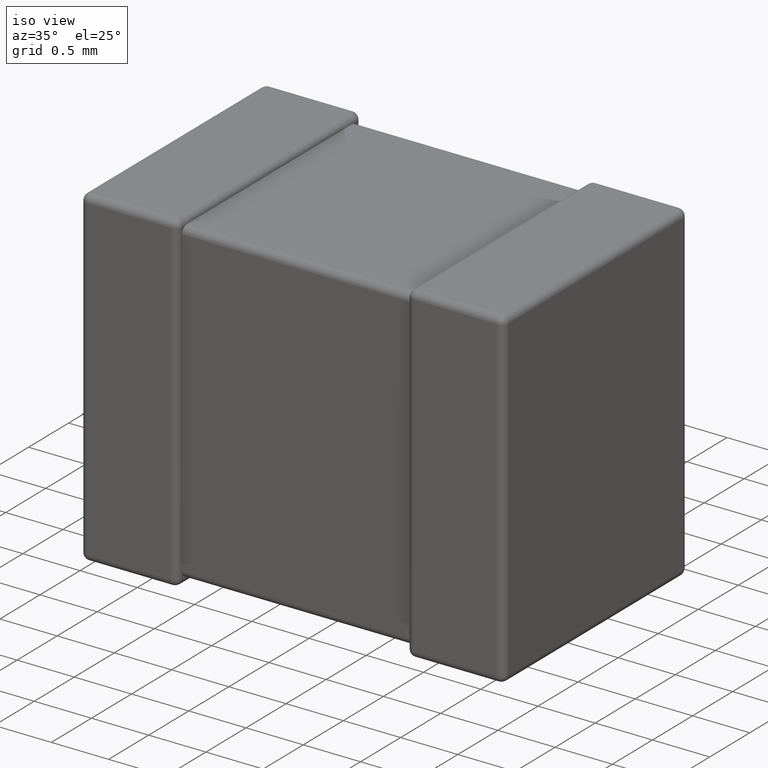
[diagram: clean part render]
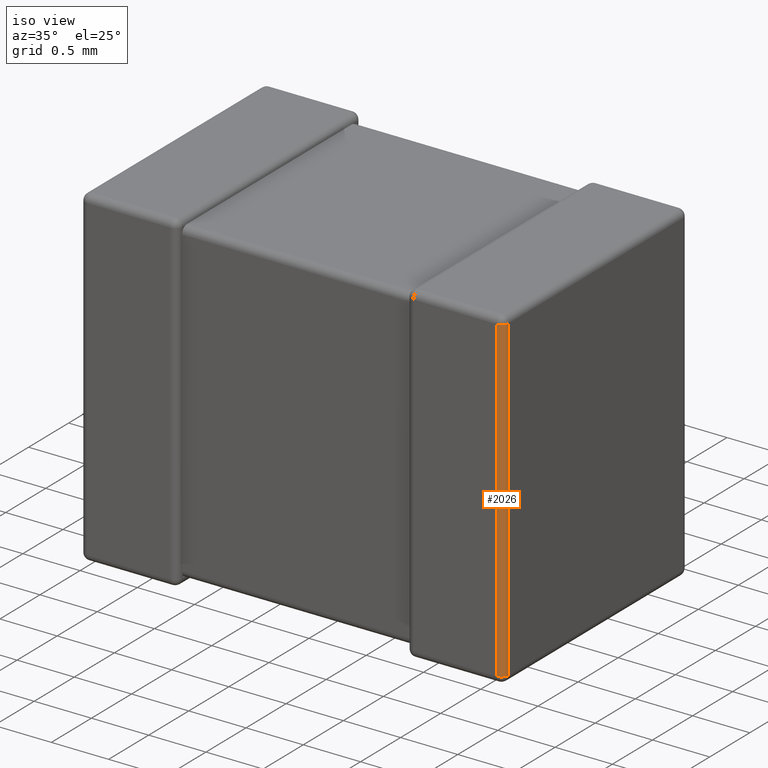
[diagram: same view with one face highlighted and labeled with its STEP entity id]
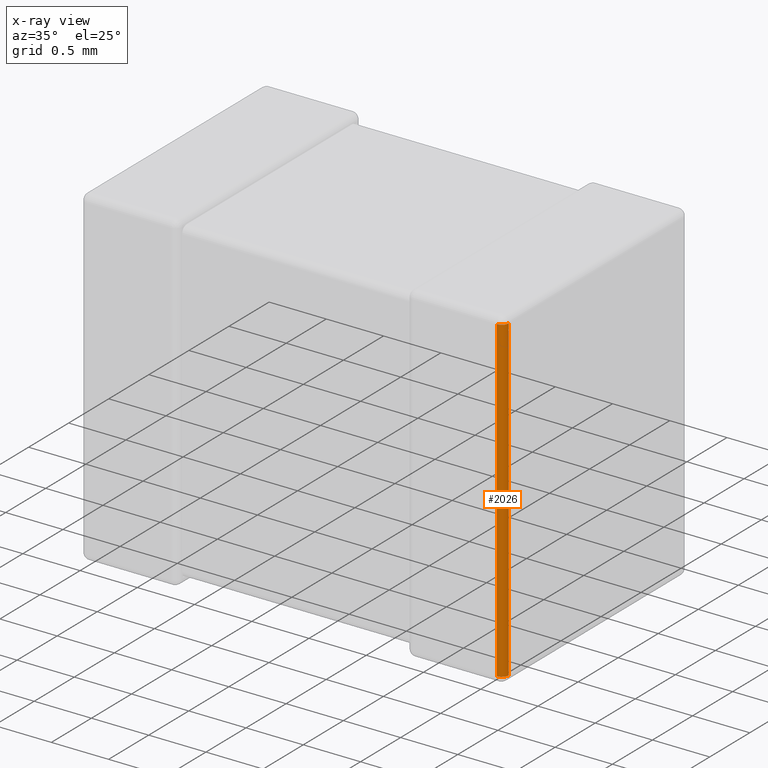
[diagram: x-ray of the same camera — body ghosted, the highlighted face saturated]
A machine part, iso view. The second image highlights one B-rep face of the part: STEP entity #2026.
The next image is the same camera in x-ray: the body ghosted, the highlighted face saturated — about 0% of this face is hidden behind the body in this view.
In plain terms, the highlighted cylindrical surface (edge-blend (fillet) strip) has radius 0.0603 mm, axis along (0, 0, -1).
Its self-contained STEP definition (entity closure, byte-faithful):
#70 = ORIENTED_EDGE ( 'NONE', *, *, #1611, .F. ) ;
#280 = CARTESIAN_POINT ( 'NONE',  ( 3.639679999999999800, 0.0000000000000000000, -2.839680000000000000 ) ) ;
#349 = AXIS2_PLACEMENT_3D ( 'NONE', #3358, #4154, #2359 ) ;
#593 = DIRECTION ( 'NONE',  ( 0.0000000000000000000, 0.0000000000000000000, -1.000000000000000000 ) ) ;
#645 = LINE ( 'NONE', #2767, #1199 ) ;
#871 = DIRECTION ( 'NONE',  ( -0.0000000000000000000, -0.0000000000000000000, 1.000000000000000000 ) ) ;
#1148 = AXIS2_PLACEMENT_3D ( 'NONE', #1440, #3980, #4305 ) ;
#1199 = VECTOR ( 'NONE', #593, 1000.000000000000000 ) ;
#1242 = CARTESIAN_POINT ( 'NONE',  ( 3.639679999999999800, 0.0000000000000000000, -0.06031999999999999900 ) ) ;
#1261 = VERTEX_POINT ( 'NONE', #280 ) ;
#1416 = VERTEX_POINT ( 'NONE', #2870 ) ;
#1440 = CARTESIAN_POINT ( 'NONE',  ( 3.639679999999999800, 0.06031999999999999900, -0.06031999999999999900 ) ) ;
#1515 = DIRECTION ( 'NONE',  ( -1.000000000000000000, 0.0000000000000000000, 0.0000000000000000000 ) ) ;
#1598 = CARTESIAN_POINT ( 'NONE',  ( 3.639679999999999800, 0.0000000000000000000, 0.0000000000000000000 ) ) ;
#1611 = EDGE_CURVE ( 'NONE', #2951, #1261, #2937, .T. ) ;
#1825 = EDGE_CURVE ( 'NONE', #2611, #1416, #2650, .T. ) ;
#1826 = CYLINDRICAL_SURFACE ( 'NONE', #349, 0.06031999999999999200 ) ;
#2026 = ADVANCED_FACE ( 'NONE', ( #4156 ), #1826, .T. ) ;
#2134 = EDGE_CURVE ( 'NONE', #1261, #2611, #2390, .T. ) ;
#2359 = DIRECTION ( 'NONE',  ( -1.000000000000000000, 0.0000000000000000000, 0.0000000000000000000 ) ) ;
#2390 = LINE ( 'NONE', #1598, #3173 ) ;
#2611 = VERTEX_POINT ( 'NONE', #1242 ) ;
#2650 = CIRCLE ( 'NONE', #1148, 0.06031999999999999200 ) ;
#2767 = CARTESIAN_POINT ( 'NONE',  ( 3.699999999999999700, 0.06031999999999999900, 0.0000000000000000000 ) ) ;
#2821 = ORIENTED_EDGE ( 'NONE', *, *, #2134, .F. ) ;
#2870 = CARTESIAN_POINT ( 'NONE',  ( 3.699999999999999700, 0.06031999999999999900, -0.06031999999999999900 ) ) ;
#2937 = CIRCLE ( 'NONE', #3634, 0.06031999999999999200 ) ;
#2951 = VERTEX_POINT ( 'NONE', #3134 ) ;
#3129 = ORIENTED_EDGE ( 'NONE', *, *, #3544, .F. ) ;
#3134 = CARTESIAN_POINT ( 'NONE',  ( 3.699999999999999700, 0.06031999999999999900, -2.839680000000000000 ) ) ;
#3173 = VECTOR ( 'NONE', #871, 1000.000000000000000 ) ;
#3358 = CARTESIAN_POINT ( 'NONE',  ( 3.639679999999999800, 0.06031999999999999900, 0.0000000000000000000 ) ) ;
#3544 = EDGE_CURVE ( 'NONE', #1416, #2951, #645, .T. ) ;
#3634 = AXIS2_PLACEMENT_3D ( 'NONE', #4103, #4085, #1515 ) ;
#3867 = ORIENTED_EDGE ( 'NONE', *, *, #1825, .F. ) ;
#3980 = DIRECTION ( 'NONE',  ( -0.0000000000000000000, 0.0000000000000000000, 1.000000000000000000 ) ) ;
#4085 = DIRECTION ( 'NONE',  ( 0.0000000000000000000, 0.0000000000000000000, -1.000000000000000000 ) ) ;
#4103 = CARTESIAN_POINT ( 'NONE',  ( 3.639679999999999800, 0.06031999999999999900, -2.839680000000000000 ) ) ;
#4154 = DIRECTION ( 'NONE',  ( 0.0000000000000000000, 0.0000000000000000000, -1.000000000000000000 ) ) ;
#4156 = FACE_OUTER_BOUND ( 'NONE', #4409, .T. ) ;
#4305 = DIRECTION ( 'NONE',  ( 1.000000000000000000, 0.0000000000000000000, 0.0000000000000000000 ) ) ;
#4409 = EDGE_LOOP ( 'NONE', ( #3867, #2821, #70, #3129 ) ) ;